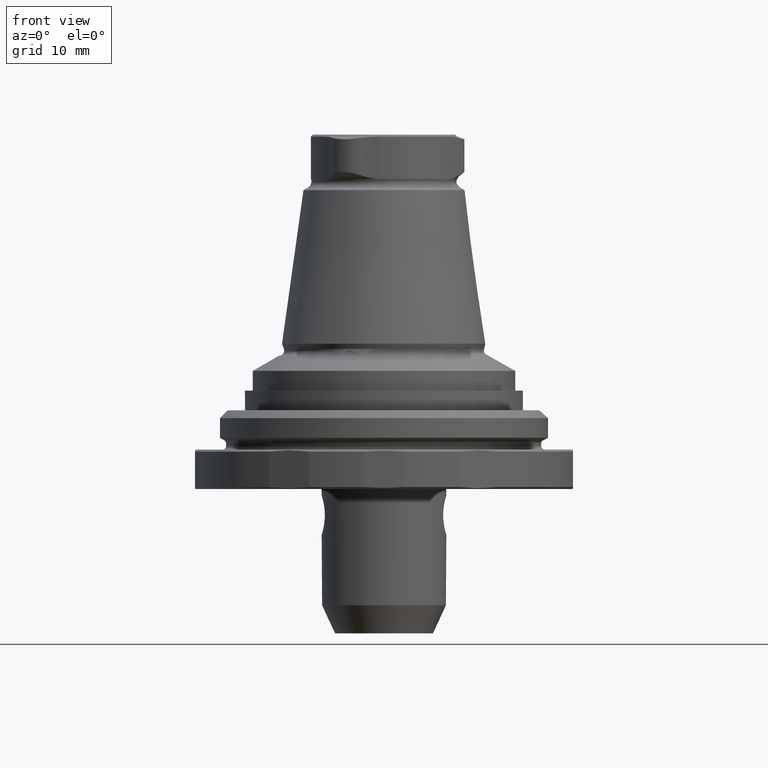
[diagram: clean part render]
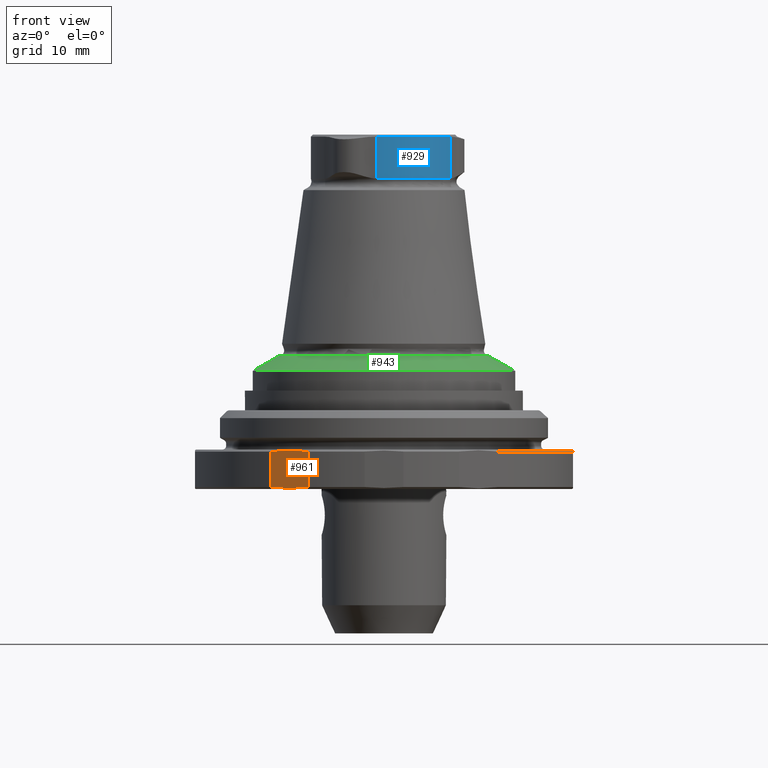
[diagram: same view with three faces highlighted in distinct colors, each labeled with its STEP entity id]
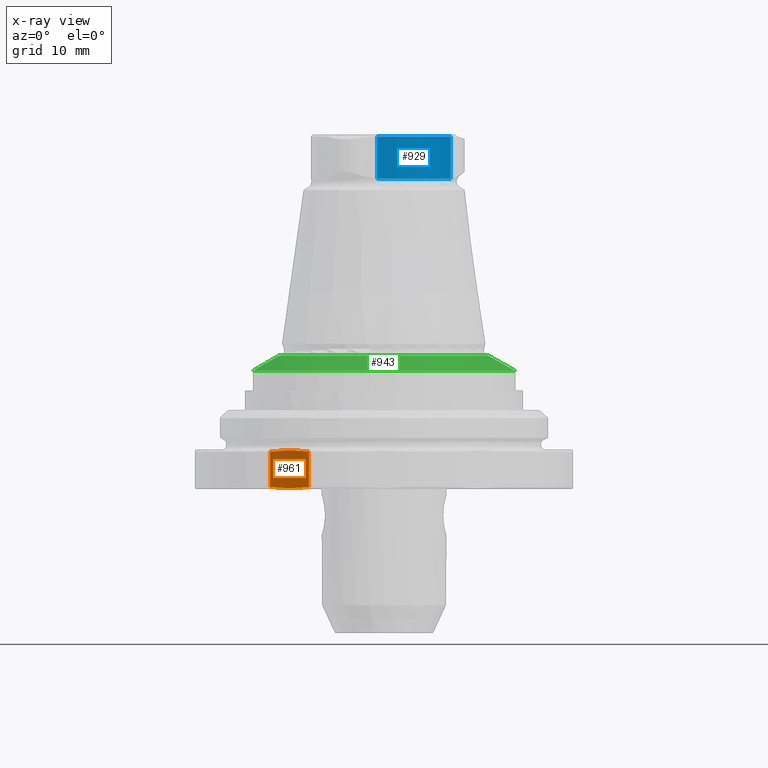
[diagram: x-ray of the same camera — body ghosted, the three highlighted faces saturated]
A machine part, front view with three faces highlighted in distinct colors.
The next image is the same camera in x-ray (body ghosted, the three faces saturated) — at least one of them is partly hidden behind the body in this view.
Their STEP definitions:

[orange] entity #961 — the highlighted planar face has unit normal (0.5, 0.866, -0).
#58=LINE('',#1745,#86);
#59=LINE('',#1752,#87);
#86=VECTOR('',#1315,1000.);
#87=VECTOR('',#1318,1000.);
#104=PLANE('',#1085);
#343=ORIENTED_EDGE('',*,*,#522,.F.);
#344=ORIENTED_EDGE('',*,*,#523,.F.);
#345=ORIENTED_EDGE('',*,*,#524,.F.);
#346=ORIENTED_EDGE('',*,*,#505,.F.);
#505=EDGE_CURVE('',#614,#615,#676,.F.);
#522=EDGE_CURVE('',#627,#614,#58,.F.);
#523=EDGE_CURVE('',#628,#627,#683,.T.);
#524=EDGE_CURVE('',#615,#628,#59,.T.);
#614=VERTEX_POINT('',#1689);
#615=VERTEX_POINT('',#1694);
#627=VERTEX_POINT('',#1744);
#628=VERTEX_POINT('',#1751);
#676=B_SPLINE_CURVE_WITH_KNOTS('',3,(#1690,#1691,#1692,#1693),
 .UNSPECIFIED.,.F.,.F.,(4,4),(0.0123361877565685,0.019109524321464),
 .UNSPECIFIED.);
#683=B_SPLINE_CURVE_WITH_KNOTS('',3,(#1747,#1748,#1749,#1750),
 .UNSPECIFIED.,.F.,.F.,(4,4),(0.0123361877565685,0.019109524321464),
 .UNSPECIFIED.);
#756=EDGE_LOOP('',(#343,#344,#345,#346));
#856=FACE_BOUND('',#756,.T.);
#961=ADVANCED_FACE('',(#856),#104,.F.);
#1085=AXIS2_PLACEMENT_3D('',#1746,#1316,#1317);
#1315=DIRECTION('',(-5.20001084984554E-33,-4.76419527885826E-18,-1.));
#1316=DIRECTION('',(0.499999999999999,0.866025403784439,-4.12591414008113E-18));
#1317=DIRECTION('',(-5.20001084984554E-33,-4.76419527885826E-18,-1.));
#1318=DIRECTION('',(-5.20001084984554E-33,-4.76419527885826E-18,-1.));
#1689=CARTESIAN_POINT('',(-17.3444863728671,-23.2415316289919,-1.29592921435212));
#1690=CARTESIAN_POINT('',(-11.4555136271329,-26.6415316289918,-1.29592921435211));
#1691=CARTESIAN_POINT('',(-13.4230431543256,-25.5055779268286,-1.02956765660349));
#1692=CARTESIAN_POINT('',(-15.3860131788131,-24.3722566547796,-1.03079369106396));
#1693=CARTESIAN_POINT('',(-17.3444863728671,-23.2415316289919,-1.29592921435211));
#1694=CARTESIAN_POINT('',(-11.4555136271329,-26.6415316289918,-1.29592921435212));
#1744=CARTESIAN_POINT('',(-17.3444863728671,-23.2415316289919,-6.69592921435212));
#1745=CARTESIAN_POINT('',(-17.3444863728671,-23.2415316289919,-0.995929214352115));
#1746=CARTESIAN_POINT('',(-14.4,-24.9415316289918,-3.99592921435211));
#1747=CARTESIAN_POINT('',(-11.4555136271329,-26.6415316289918,-6.69592921435212));
#1748=CARTESIAN_POINT('',(-13.4230431543256,-25.5055779268286,-6.96229077210074));
#1749=CARTESIAN_POINT('',(-15.3860131788131,-24.3722566547796,-6.96106473764027));
#1750=CARTESIAN_POINT('',(-17.3444863728671,-23.2415316289919,-6.69592921435212));
#1751=CARTESIAN_POINT('',(-11.4555136271329,-26.6415316289918,-6.69592921435212));
#1752=CARTESIAN_POINT('',(-11.4555136271329,-26.6415316289918,-0.995929214352115));

[blue] entity #929 — the highlighted cylindrical surface (partial cylindrical patch) has radius 11.15 mm, axis along (0, 0, 1).
#49=LINE('',#1547,#77);
#50=LINE('',#1554,#78);
#77=VECTOR('',#1176,1000.);
#78=VECTOR('',#1179,1000.);
#123=CIRCLE('',#1014,11.15);
#126=CIRCLE('',#1021,11.15);
#223=ORIENTED_EDGE('',*,*,#463,.T.);
#224=ORIENTED_EDGE('',*,*,#454,.T.);
#225=ORIENTED_EDGE('',*,*,#461,.F.);
#226=ORIENTED_EDGE('',*,*,#464,.F.);
#454=EDGE_CURVE('',#570,#563,#123,.T.);
#461=EDGE_CURVE('',#580,#563,#49,.T.);
#463=EDGE_CURVE('',#581,#570,#50,.T.);
#464=EDGE_CURVE('',#581,#580,#126,.T.);
#563=VERTEX_POINT('',#1455);
#570=VERTEX_POINT('',#1485);
#580=VERTEX_POINT('',#1548);
#581=VERTEX_POINT('',#1555);
#705=EDGE_LOOP('',(#223,#224,#225,#226));
#805=FACE_BOUND('',#705,.T.);
#895=CYLINDRICAL_SURFACE('',#1020,11.15);
#929=ADVANCED_FACE('',(#805),#895,.T.);
#1014=AXIS2_PLACEMENT_3D('',#1525,#1163,#1164);
#1020=AXIS2_PLACEMENT_3D('',#1553,#1177,#1178);
#1021=AXIS2_PLACEMENT_3D('',#1556,#1180,#1181);
#1163=DIRECTION('',(1.27319154200133E-16,-7.79579225983867E-33,-1.));
#1164=DIRECTION('',(-1.,6.12303176911189E-17,-1.27319154200133E-16));
#1176=DIRECTION('',(0.,0.,1.));
#1177=DIRECTION('',(0.,0.,1.));
#1178=DIRECTION('',(1.,-6.12303176911189E-17,0.));
#1179=DIRECTION('',(0.,0.,1.));
#1180=DIRECTION('',(1.27319154200133E-16,-7.79579225983867E-33,-1.));
#1181=DIRECTION('',(-1.,6.12303176911189E-17,-1.27319154200133E-16));
#1455=CARTESIAN_POINT('',(-1.04777822012702,-11.100660376817,46.7));
#1485=CARTESIAN_POINT('',(10.1373429951703,-4.64292763224633,46.6999999999998));
#1525=CARTESIAN_POINT('',(1.02373612345724E-16,-6.26836880711611E-33,46.7));
#1547=CARTESIAN_POINT('',(-1.04777822012702,-11.100660376817,-41.9719056781409));
#1548=CARTESIAN_POINT('',(-1.04777822012702,-11.100660376817,40.267006166777));
#1553=CARTESIAN_POINT('',(1.6945743898726E-13,-1.83895465013651E-13,-41.9719056781409));
#1554=CARTESIAN_POINT('',(10.1373429951703,-4.64292763224633,-41.9719056781409));
#1555=CARTESIAN_POINT('',(10.1373429951703,-4.64292763224633,40.2670061667779));
#1556=CARTESIAN_POINT('',(1.67922634330326E-15,-1.02819562475755E-31,40.267006166777));

[green] entity #943 — the highlighted conical surface has half-angle 60 deg.
#35=CONICAL_SURFACE('',#1044,20.,1.0471975511966);
#135=CIRCLE('',#1043,16.0162831425916);
#136=CIRCLE('',#1045,20.);
#284=ORIENTED_EDGE('',*,*,#484,.T.);
#285=ORIENTED_EDGE('',*,*,#485,.F.);
#484=EDGE_CURVE('',#593,#593,#135,.T.);
#485=EDGE_CURVE('',#594,#594,#136,.T.);
#593=VERTEX_POINT('',#1625);
#594=VERTEX_POINT('',#1628);
#724=EDGE_LOOP('',(#284));
#725=EDGE_LOOP('',(#285));
#824=FACE_BOUND('',#724,.T.);
#825=FACE_BOUND('',#725,.T.);
#943=ADVANCED_FACE('',(#824,#825),#35,.T.);
#1043=AXIS2_PLACEMENT_3D('',#1624,#1227,#1228);
#1044=AXIS2_PLACEMENT_3D('',#1626,#1229,#1230);
#1045=AXIS2_PLACEMENT_3D('',#1627,#1231,#1232);
#1227=DIRECTION('',(1.27319154200133E-16,-7.79579225983867E-33,-1.));
#1228=DIRECTION('',(-1.,6.12303176911189E-17,-1.27319154200133E-16));
#1229=DIRECTION('',(1.27319154200133E-16,-7.79579225983867E-33,-1.));
#1230=DIRECTION('',(-1.,6.12303176911189E-17,-1.27319154200133E-16));
#1231=DIRECTION('',(1.27319154200133E-16,-7.79579225983867E-33,-1.));
#1232=DIRECTION('',(-1.,6.12303176911189E-17,-1.27319154200133E-16));
#1624=CARTESIAN_POINT('',(4.35431507364453E-15,-2.66616095286482E-31,13.3040707856479));
#1625=CARTESIAN_POINT('',(-16.0162831425916,9.80682105051795E-16,13.3040707856479));
#1626=CARTESIAN_POINT('',(4.64714912830484E-15,-2.84546417484111E-31,11.0040707856479));
#1627=CARTESIAN_POINT('',(4.64714912830484E-15,-2.84546417484111E-31,11.0040707856479));
#1628=CARTESIAN_POINT('',(-20.,1.22460635382238E-15,11.0040707856479));